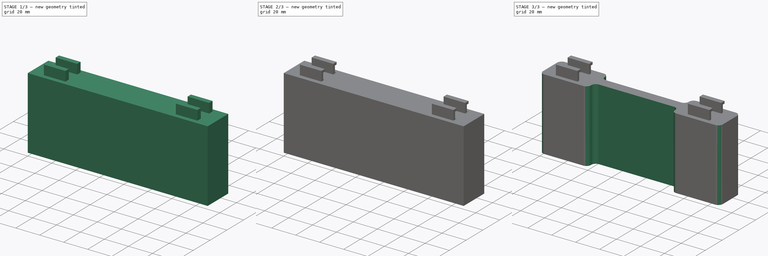
[diagram: build sequence overview — one tinted view per stage of 3, left to right]
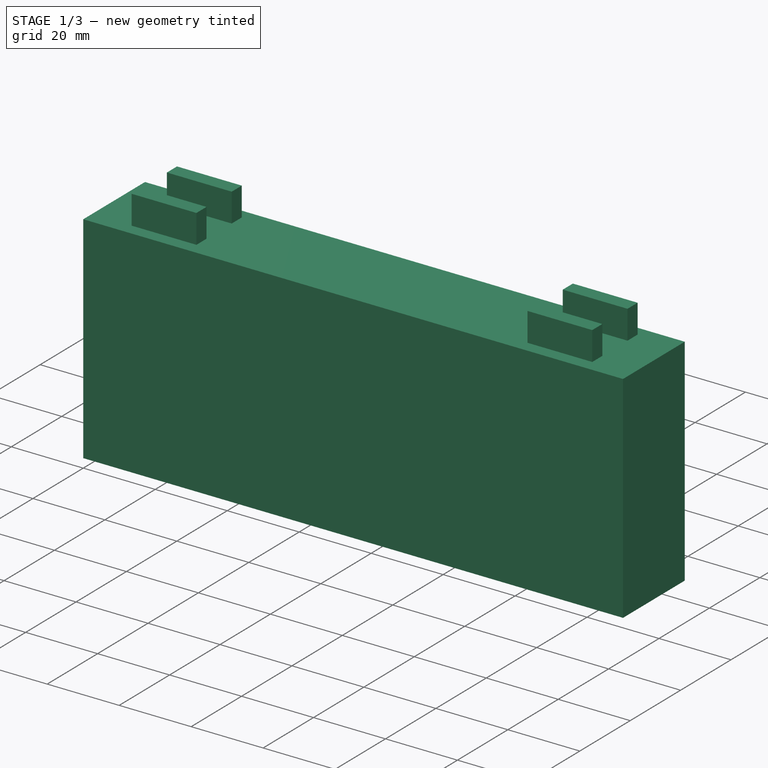
[diagram: stage 1 of 3 — iso view after this stage's code; geometry added in this stage tinted green]
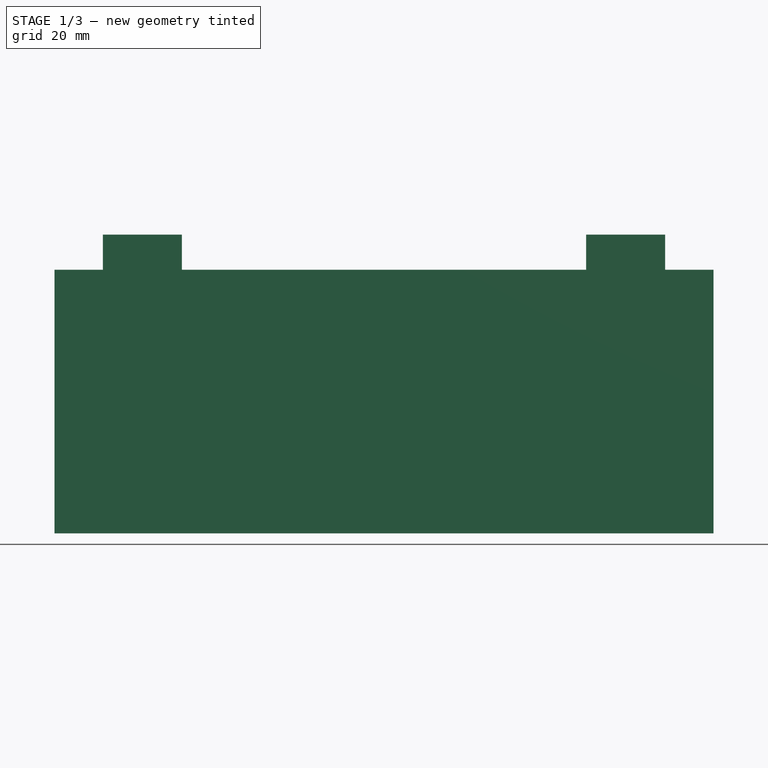
[diagram: stage 1 of 3 — front view after this stage's code; geometry added in this stage tinted green]
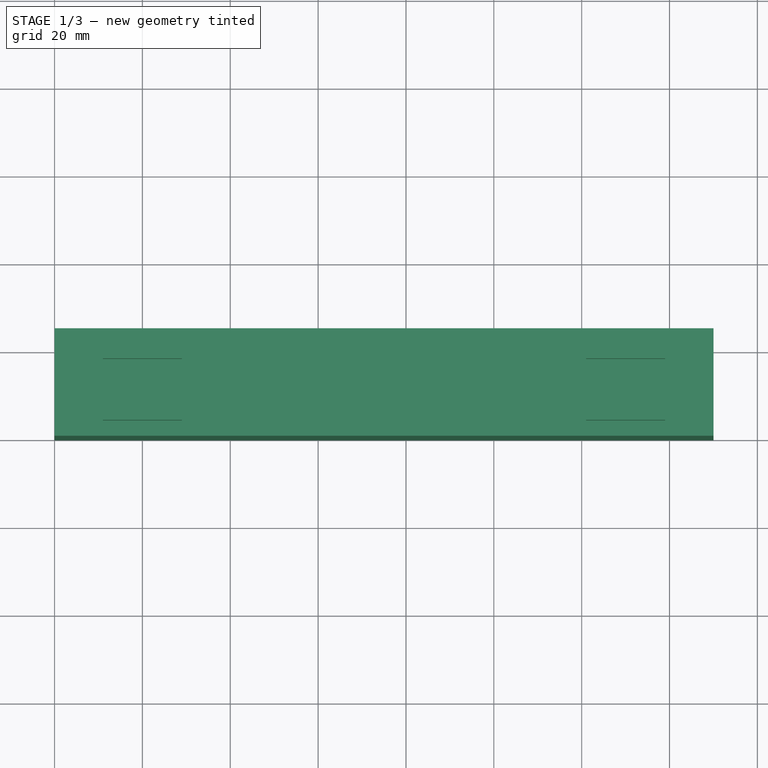
[diagram: stage 1 of 3 — top view after this stage's code; geometry added in this stage tinted green]
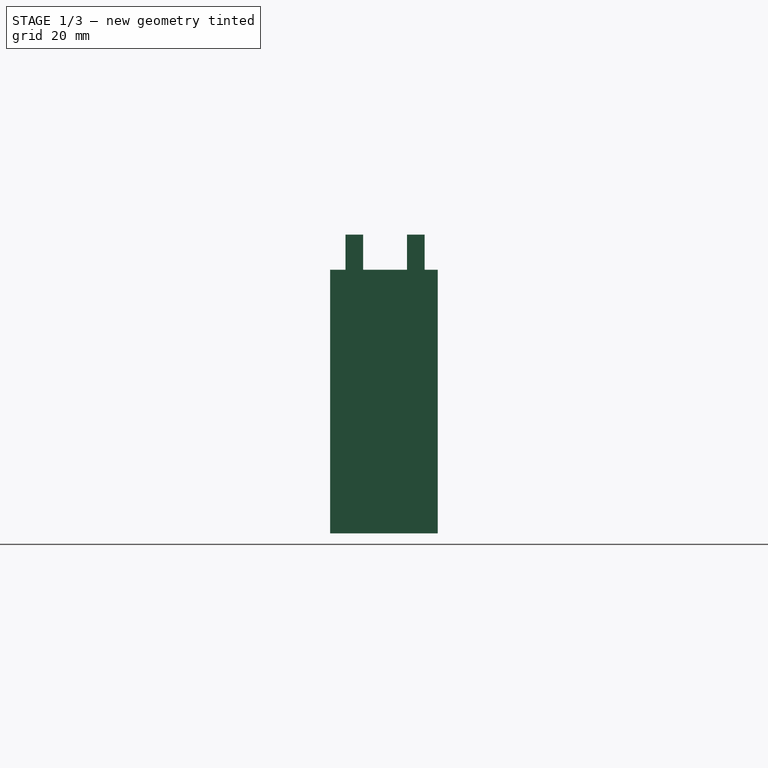
[diagram: stage 1 of 3 — right view after this stage's code; geometry added in this stage tinted green]
FCSTD DOCUMENT  (FreeCAD 0.16R6706 (Git))
Label: phonestand
License: All rights reserved
LicenseURL: http://en.wikipedia.org/wiki/All_rights_reserved
objects: Sketcher::SketchObject×5, PartDesign::Pocket×3, PartDesign::Pad×2, PartDesign::Fillet×1
note: 16 computed .brp shape members not serialized (recipe doc carries the construction recipe); baked Part::Feature solids carry a one-line shape summary decoded from their .brp

FEATURE [Sketcher::SketchObject] Sketch001
  Placement = pos=(0,0,60) rot=(0,0,1;0rad)
  sketch-geometry (4):
    g0: LineSegment StartX=0 StartY=0 StartZ=0 EndX=150 EndY=0 EndZ=0
    g1: LineSegment StartX=150 StartY=0 StartZ=0 EndX=150 EndY=24.5 EndZ=0
    g2: LineSegment StartX=150 StartY=24.5 StartZ=0 EndX=0 EndY=24.5 EndZ=0
    g3: LineSegment StartX=0 StartY=24.5 StartZ=0 EndX=0 EndY=0 EndZ=0
  constraints (12):
    c: Coincident(g0,g1)
    c: Coincident(g1,g2)
    c: Coincident(g2,g3)
    c: Coincident(g3,g0)
    c: Horizontal(g0)
    c: Horizontal(g2)
    c: Vertical(g1)
    c: Vertical(g3)
    c: DistanceY(g0) = 0
    c: DistanceX(g2) = 0
    c: DistanceY(g1,g1) = 24.5
    c: DistanceX(g1) = 150
FEATURE [PartDesign::Pad] Pad
  Length = 60
  Length2 = 100
  Placement = pos=(0,0,60) rot=(0,0,1;0rad)
  Sketch = -> Sketch001
  Type = 0
FEATURE [Sketcher::SketchObject] Sketch
  Placement = pos=(0,0,120) rot=(0,0,1;0rad)
  Support = -> Pad [Face6]
  sketch-geometry (16):
    g0: LineSegment StartX=11 StartY=7.5 StartZ=0 EndX=29 EndY=7.5 EndZ=0
    g1: LineSegment StartX=29 StartY=7.5 StartZ=0 EndX=29 EndY=3.5 EndZ=0
    g2: LineSegment StartX=29 StartY=3.5 StartZ=0 EndX=11 EndY=3.5 EndZ=0
    g3: LineSegment StartX=11 StartY=3.5 StartZ=0 EndX=11 EndY=7.5 EndZ=0
    g4: LineSegment StartX=11 StartY=21.5 StartZ=0 EndX=29 EndY=21.5 EndZ=0
    g5: LineSegment StartX=29 StartY=21.5 StartZ=0 EndX=29 EndY=17.5 EndZ=0
    g6: LineSegment StartX=29 StartY=17.5 StartZ=0 EndX=11 EndY=17.5 EndZ=0
    g7: LineSegment StartX=11 StartY=17.5 StartZ=0 EndX=11 EndY=21.5 EndZ=0
    g8: LineSegment StartX=121 StartY=21.5 StartZ=0 EndX=139 EndY=21.5 EndZ=0
    g9: LineSegment StartX=139 StartY=21.5 StartZ=0 EndX=139 EndY=17.5 EndZ=0
    g10: LineSegment StartX=139 StartY=17.5 StartZ=0 EndX=121 EndY=17.5 EndZ=0
    g11: LineSegment StartX=121 StartY=17.5 StartZ=0 EndX=121 EndY=21.5 EndZ=0
    g12: LineSegment StartX=121 StartY=7.5 StartZ=0 EndX=139 EndY=7.5 EndZ=0
    g13: LineSegment StartX=139 StartY=7.5 StartZ=0 EndX=139 EndY=3.5 EndZ=0
    g14: LineSegment StartX=139 StartY=3.5 StartZ=0 EndX=121 EndY=3.5 EndZ=0
    g15: LineSegment StartX=121 StartY=3.5 StartZ=0 EndX=121 EndY=7.5 EndZ=0
  constraints (48):
    c: Coincident(g0,g1)
    c: Coincident(g1,g2)
    c: Coincident(g2,g3)
    c: Coincident(g3,g0)
    c: Horizontal(g0)
    c: Horizontal(g2)
    c: Vertical(g1)
    c: Vertical(g3)
    c: Coincident(g4,g5)
    c: Coincident(g5,g6)
    c: Coincident(g6,g7)
    c: Coincident(g7,g4)
    c: Horizontal(g4)
    c: Horizontal(g6)
    c: Vertical(g5)
    c: Vertical(g7)
    c: Coincident(g8,g9)
    c: Coincident(g9,g10)
    c: Coincident(g10,g11)
    c: Coincident(g11,g8)
    c: Horizontal(g8)
    c: Horizontal(g10)
    c: Vertical(g9)
    c: Vertical(g11)
    c: Coincident(g12,g13)
    c: Coincident(g13,g14)
    c: Coincident(g14,g15)
    c: Coincident(g15,g12)
    c: Horizontal(g12)
    c: Horizontal(g14)
    c: Vertical(g13)
    c: Vertical(g15)
    c: Equal(g5,g1)
    c: Equal(g1,g11)
    c: Equal(g11,g15)
    c: Distance(g13) = 4
    c: Equal(g12,g8)
    c: Equal(g8,g4)
    c: Equal(g4,g0)
    c: Distance(g4) = 18
    c: Distance(g14,g1) = 92
    c: Distance(g5,g10) = 92
    c: DistanceX(g0) = 11
    c: DistanceX(g4) = 11
    c: Distance(g0,g6) = 10
    c: Distance(g9,g12) = 10
    c: DistanceY(g1) = 3.5
    c: DistanceY(g14) = 3.5
FEATURE [PartDesign::Pad] Pad001
  Length = 8
  Length2 = 100
  Placement = pos=(0,0,60) rot=(0,0,1;0rad)
  Sketch = -> Sketch
  Type = 0
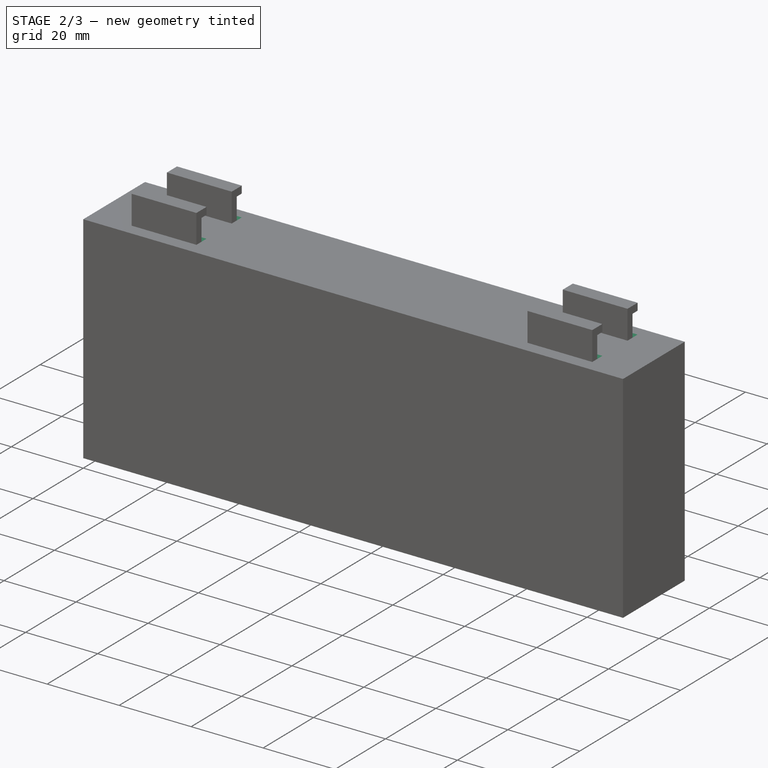
[diagram: stage 2 of 3 — iso view after this stage's code; geometry added in this stage tinted green]
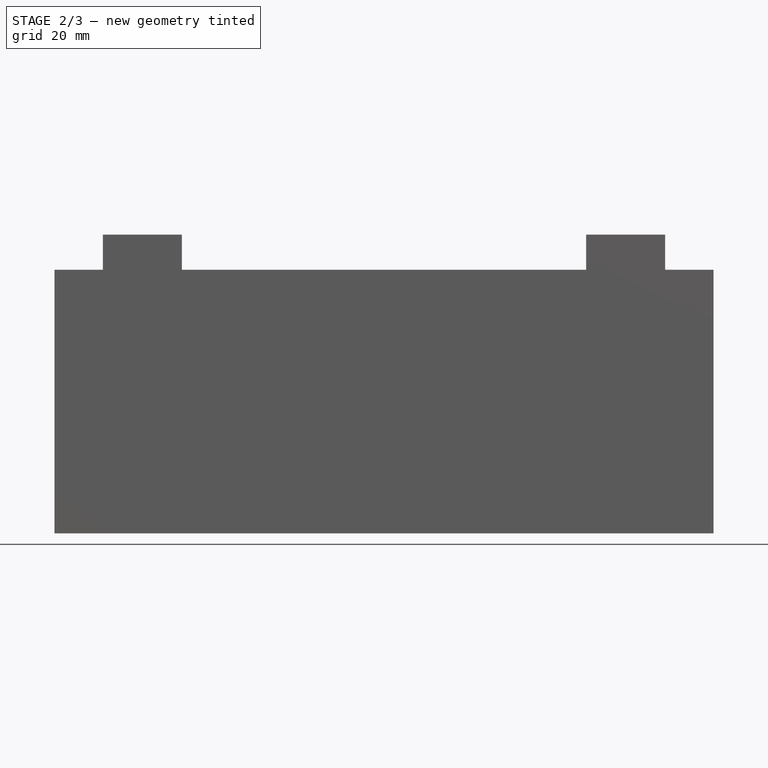
[diagram: stage 2 of 3 — front view after this stage's code; geometry added in this stage tinted green]
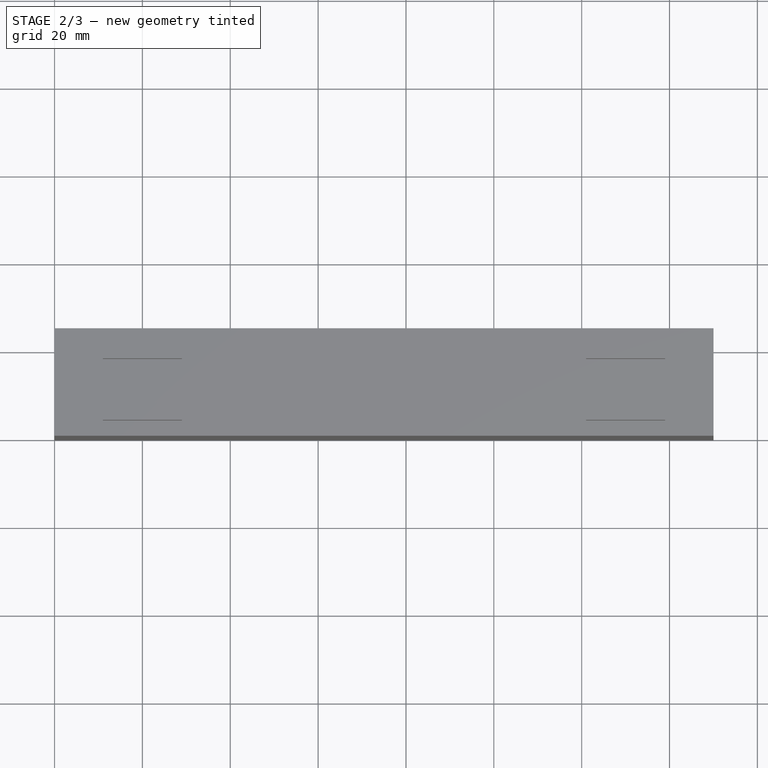
[diagram: stage 2 of 3 — top view after this stage's code; geometry added in this stage tinted green]
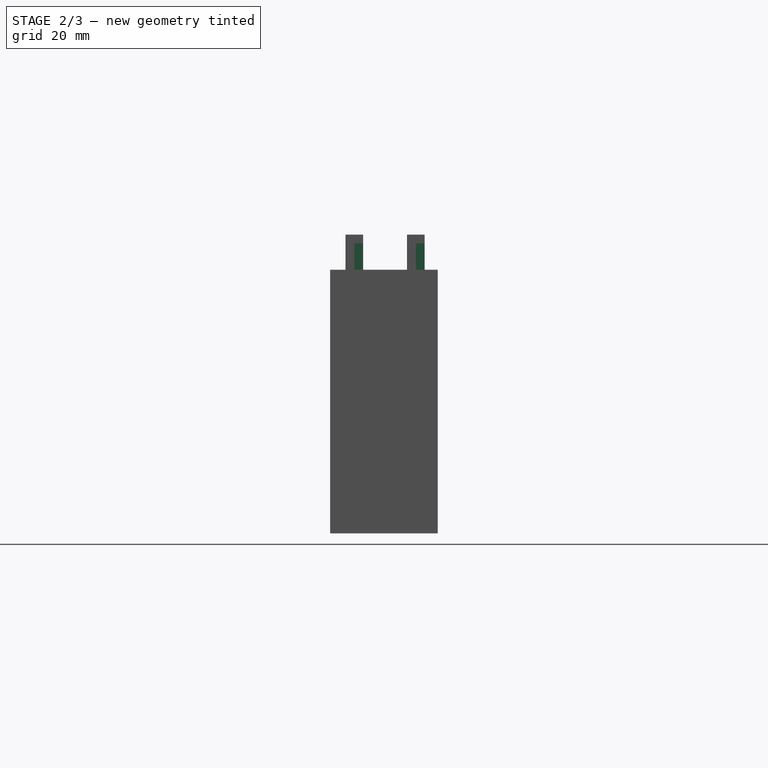
[diagram: stage 2 of 3 — right view after this stage's code; geometry added in this stage tinted green]
FEATURE [Sketcher::SketchObject] Sketch002
  Placement = pos=(0,21.5,60) rot=(0,0.707107,0.707107;3.14159rad)
  Support = -> Pad001 [Face20]
  sketch-geometry (8):
    g0: LineSegment StartX=-140.4 StartY=66 StartZ=0 EndX=-125 EndY=66 EndZ=0
    g1: LineSegment StartX=-125 StartY=66 StartZ=0 EndX=-125 EndY=60 EndZ=0
    g2: LineSegment StartX=-125 StartY=60 StartZ=0 EndX=-140.4 EndY=60 EndZ=0
    g3: LineSegment StartX=-140.4 StartY=60 StartZ=0 EndX=-140.4 EndY=66 EndZ=0
    g4: LineSegment StartX=-31.7265 StartY=66 StartZ=0 EndX=-14 EndY=66 EndZ=0
    g5: LineSegment StartX=-14 StartY=66 StartZ=0 EndX=-14 EndY=60 EndZ=0
    g6: LineSegment StartX=-14 StartY=60 StartZ=0 EndX=-31.7265 EndY=60 EndZ=0
    g7: LineSegment StartX=-31.7265 StartY=60 StartZ=0 EndX=-31.7265 EndY=66 EndZ=0
  constraints (22):
    c: Coincident(g0,g1)
    c: Coincident(g1,g2)
    c: Coincident(g2,g3)
    c: Coincident(g3,g0)
    c: Horizontal(g0)
    c: Horizontal(g2)
    c: Vertical(g1)
    c: Vertical(g3)
    c: Coincident(g4,g5)
    c: Coincident(g5,g6)
    c: Coincident(g6,g7)
    c: Coincident(g7,g4)
    c: Horizontal(g4)
    c: Horizontal(g6)
    c: Vertical(g5)
    c: Vertical(g7)
    c: Equal(g1,g7)
    c: DistanceY(g-1,g4) = 66
    c: DistanceY(g0) = 66
    c: DistanceX(g4,g-1) = 14
    c: DistanceX(g0) = -125
    c: Distance(g3) = 6
FEATURE [PartDesign::Pocket] Pocket
  Length = 2
  Placement = pos=(0,0,60) rot=(0,0,1;0rad)
  Sketch = -> Sketch002
  Type = 0
FEATURE [Sketcher::SketchObject] Sketch003
  Placement = pos=(0,7.5,60) rot=(0,0.707107,0.707107;3.14159rad)
  Support = -> Pocket [Face14]
  sketch-geometry (8):
    g0: LineSegment StartX=-140.4 StartY=66 StartZ=0 EndX=-125 EndY=66 EndZ=0
    g1: LineSegment StartX=-125 StartY=66 StartZ=0 EndX=-125 EndY=60 EndZ=0
    g2: LineSegment StartX=-125 StartY=60 StartZ=0 EndX=-140.4 EndY=60 EndZ=0
    g3: LineSegment StartX=-140.4 StartY=60 StartZ=0 EndX=-140.4 EndY=66 EndZ=0
    g4: LineSegment StartX=-31.7265 StartY=66 StartZ=0 EndX=-14 EndY=66 EndZ=0
    g5: LineSegment StartX=-14 StartY=66 StartZ=0 EndX=-14 EndY=60 EndZ=0
    g6: LineSegment StartX=-14 StartY=60 StartZ=0 EndX=-31.7265 EndY=60 EndZ=0
    g7: LineSegment StartX=-31.7265 StartY=60 StartZ=0 EndX=-31.7265 EndY=66 EndZ=0
  constraints (22):
    c: Coincident(g0,g1)
    c: Coincident(g1,g2)
    c: Coincident(g2,g3)
    c: Coincident(g3,g0)
    c: Horizontal(g0)
    c: Horizontal(g2)
    c: Vertical(g1)
    c: Vertical(g3)
    c: Coincident(g4,g5)
    c: Coincident(g5,g6)
    c: Coincident(g6,g7)
    c: Coincident(g7,g4)
    c: Horizontal(g4)
    c: Horizontal(g6)
    c: Vertical(g5)
    c: Vertical(g7)
    c: Equal(g1,g7)
    c: DistanceY(g-1,g4) = 66
    c: DistanceY(g0) = 66
    c: DistanceX(g4,g-1) = 14
    c: DistanceX(g0) = -125
    c: Distance(g3) = 6
FEATURE [PartDesign::Pocket] Pocket001
  Length = 2
  Placement = pos=(0,0,60) rot=(0,0,1;0rad)
  Sketch = -> Sketch003
  Type = 0
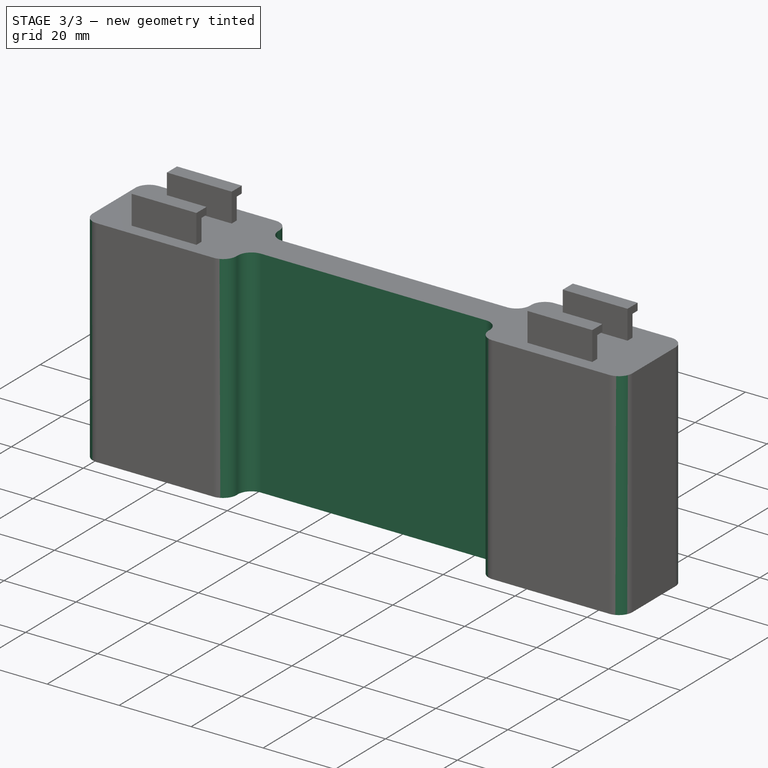
[diagram: stage 3 of 3 — iso view after this stage's code; geometry added in this stage tinted green]
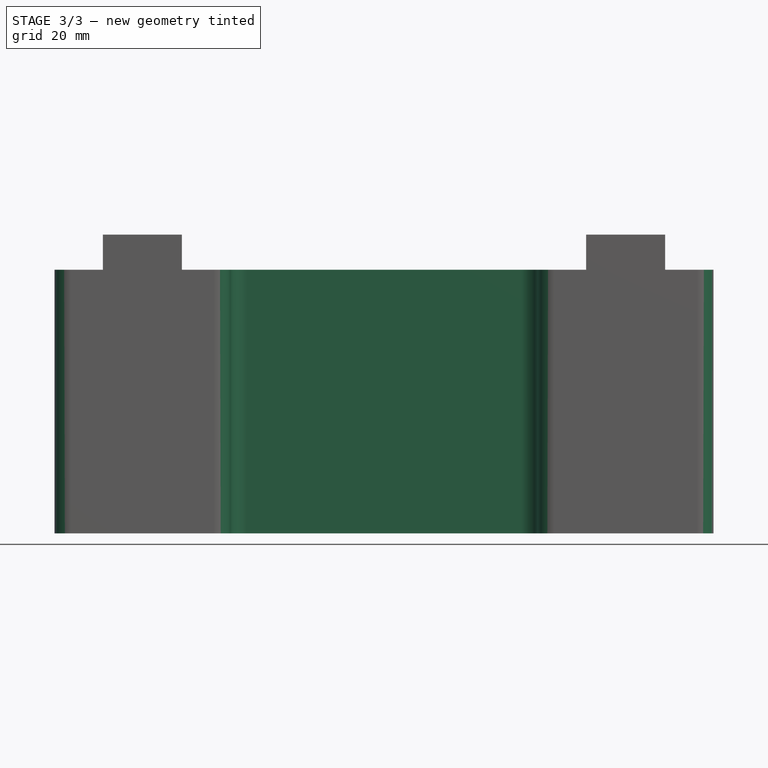
[diagram: stage 3 of 3 — front view after this stage's code; geometry added in this stage tinted green]
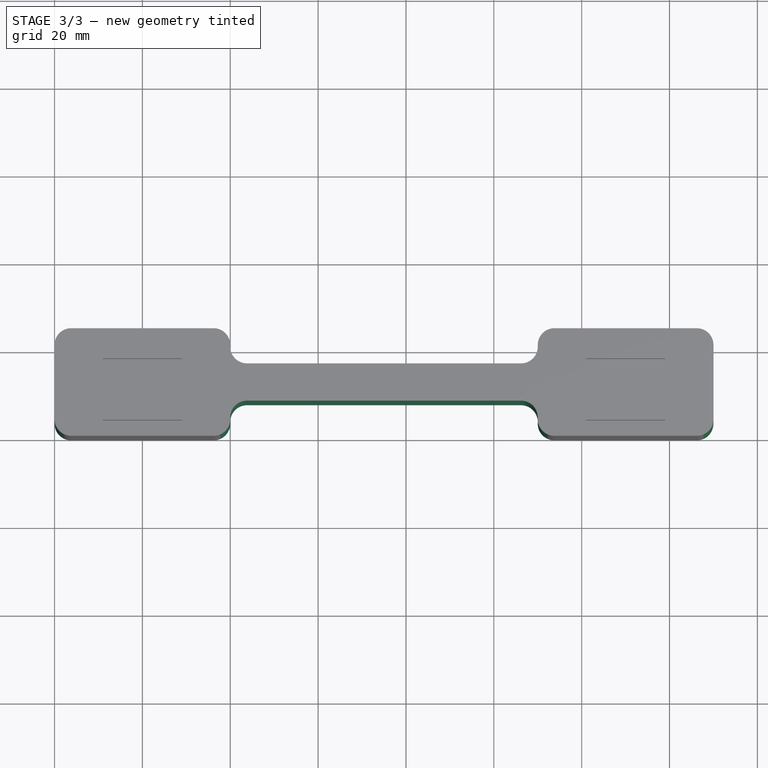
[diagram: stage 3 of 3 — top view after this stage's code; geometry added in this stage tinted green]
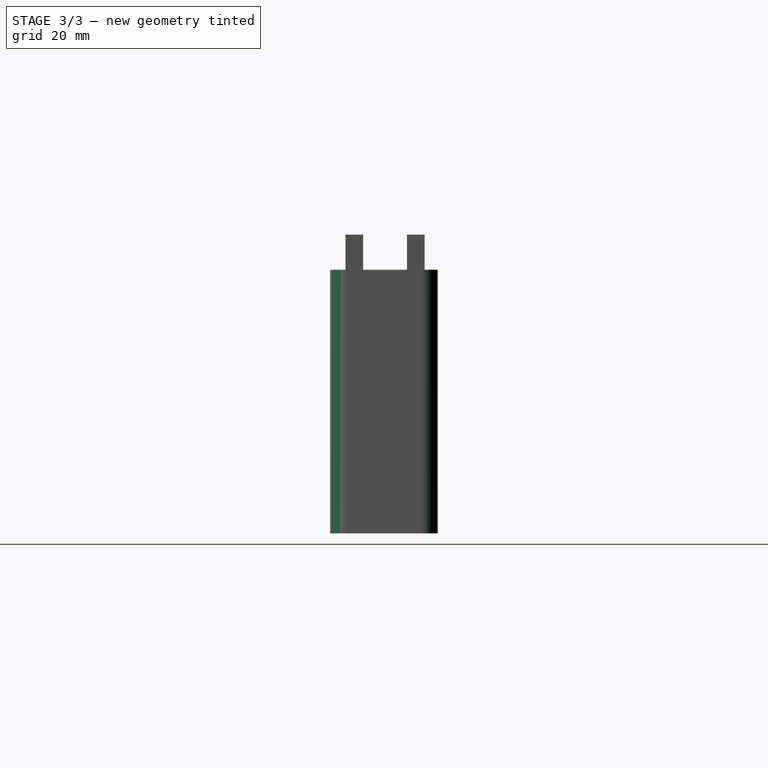
[diagram: stage 3 of 3 — right view after this stage's code; geometry added in this stage tinted green]
FEATURE [Sketcher::SketchObject] Sketch004
  Placement = pos=(0,0,120) rot=(0,0,1;0rad)
  Support = -> Pocket001 [Face5]
  sketch-geometry (8):
    g0: LineSegment StartX=40 StartY=24.5 StartZ=0 EndX=110 EndY=24.5 EndZ=0
    g1: LineSegment StartX=110 StartY=24.5 StartZ=0 EndX=110 EndY=16.5 EndZ=0
    g2: LineSegment StartX=110 StartY=16.5 StartZ=0 EndX=40 EndY=16.5 EndZ=0
    g3: LineSegment StartX=40 StartY=16.5 StartZ=0 EndX=40 EndY=24.5 EndZ=0
    g4: LineSegment StartX=40 StartY=8 StartZ=0 EndX=110 EndY=8 EndZ=0
    g5: LineSegment StartX=110 StartY=8 StartZ=0 EndX=110 EndY=0 EndZ=0
    g6: LineSegment StartX=110 StartY=0 StartZ=0 EndX=40 EndY=0 EndZ=0
    g7: LineSegment StartX=40 StartY=0 StartZ=0 EndX=40 EndY=8 EndZ=0
  constraints (24):
    c: Coincident(g0,g1)
    c: Coincident(g1,g2)
    c: Coincident(g2,g3)
    c: Coincident(g3,g0)
    c: Horizontal(g0)
    c: Horizontal(g2)
    c: Vertical(g1)
    c: Vertical(g3)
    c: Coincident(g4,g5)
    c: Coincident(g5,g6)
    c: Coincident(g6,g7)
    c: Coincident(g7,g4)
    c: Horizontal(g4)
    c: Horizontal(g6)
    c: Vertical(g5)
    c: Vertical(g7)
    c: Equal(g6,g2)
    c: Equal(g1,g5)
    c: DistanceY(g6) = 0
    c: DistanceY(g4) = 8
    c: Distance(g4) = 70
    c: DistanceX(g4) = 40
    c: DistanceX(g0) = 40
    c: Distance(g1,g4) = 8.5
FEATURE [PartDesign::Pocket] Pocket002
  Length = 5
  Placement = pos=(0,0,60) rot=(0,0,1;0rad)
  Sketch = -> Sketch004
  Type = 1
FEATURE [PartDesign::Fillet] Fillet
  Base = -> Pocket002 [Edge63,Edge62,Edge61,Edge66,Edge65,Edge64,Edge4,Edge60,Edge68,Edge2,Edge17,Edge67]
  Placement = pos=(0,0,60) rot=(0,0,1;0rad)
  Radius = 3.8
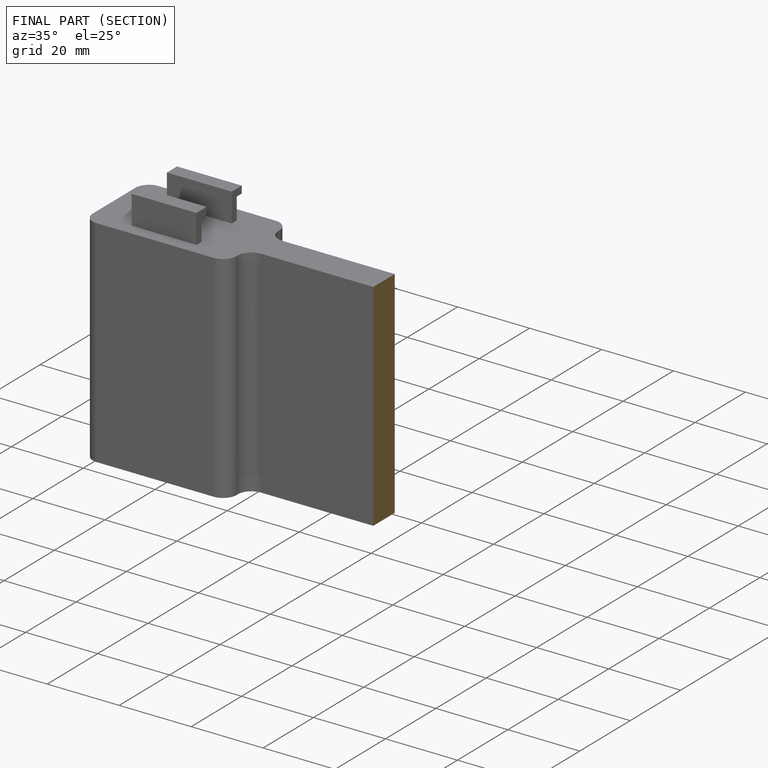
[diagram: finished part — half-section view (interior)]
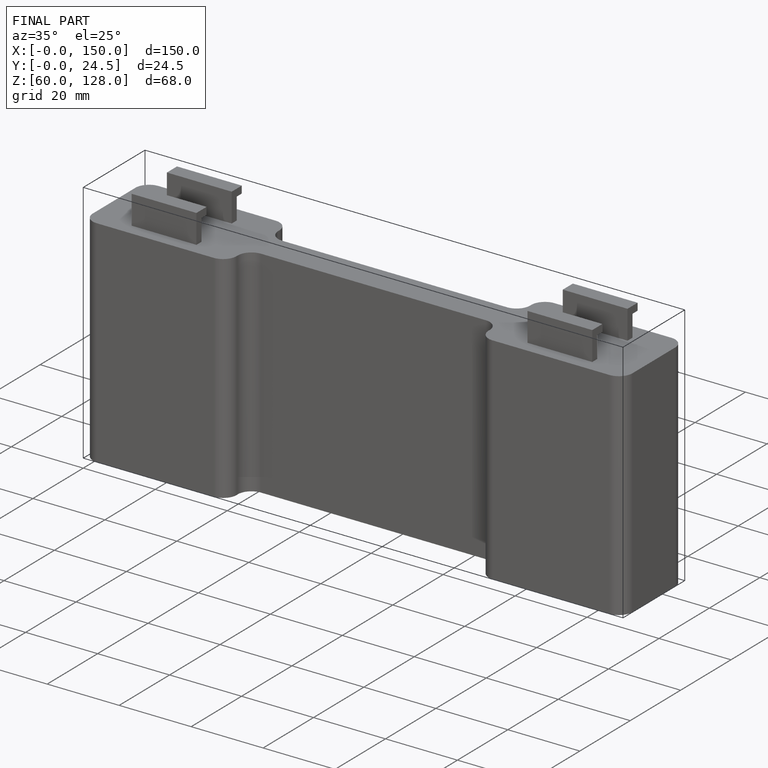
[diagram: finished part — iso view with bounding-box wireframe]
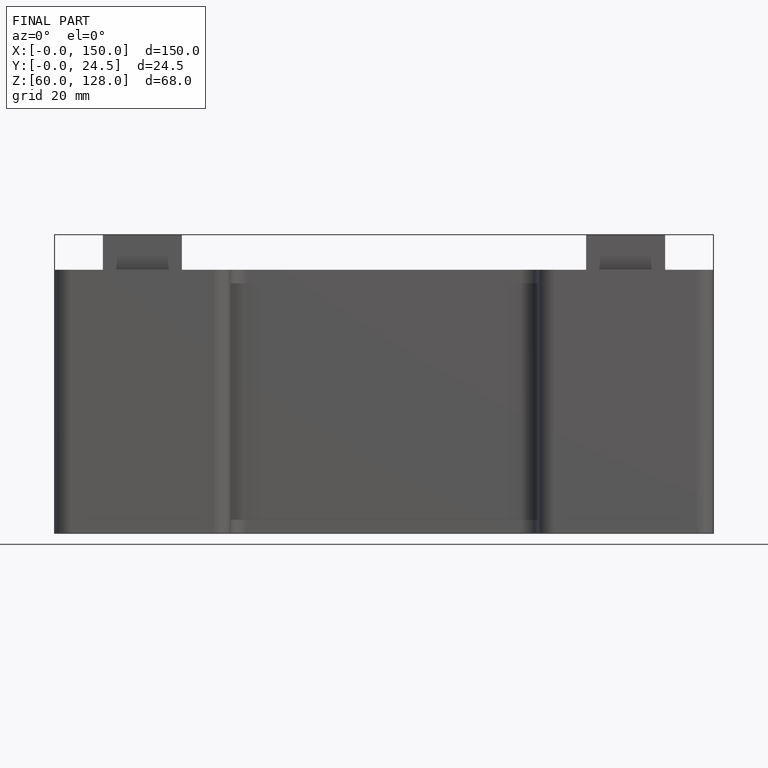
[diagram: finished part — front view with bounding-box wireframe]
